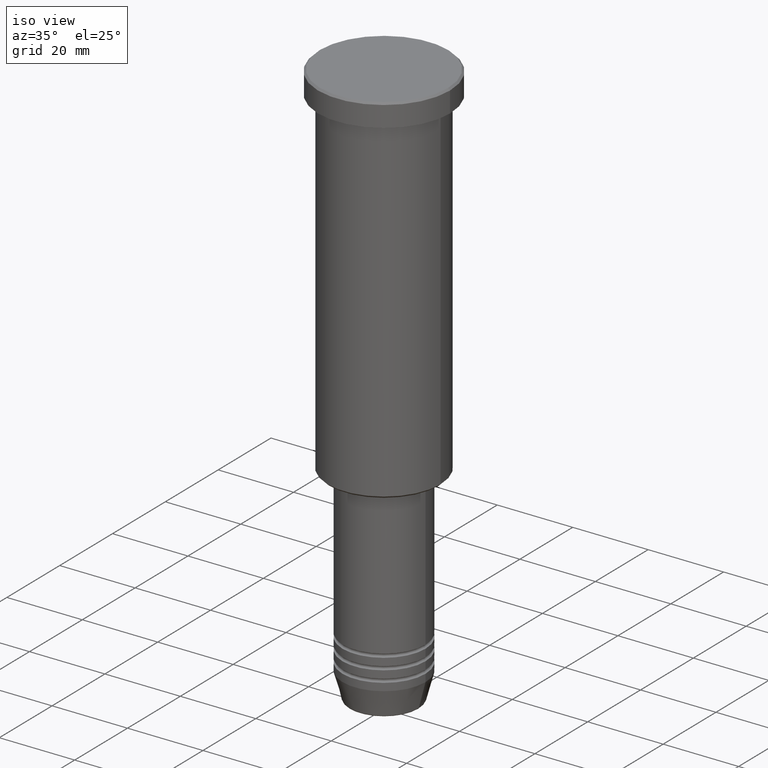
[diagram: clean part render]
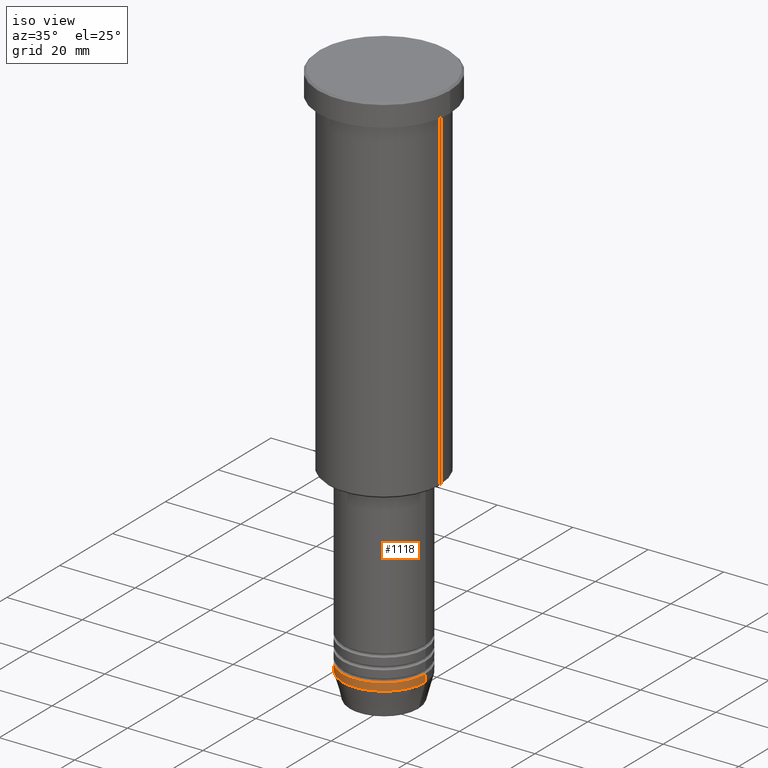
[diagram: same view with one face highlighted and labeled with its STEP entity id]
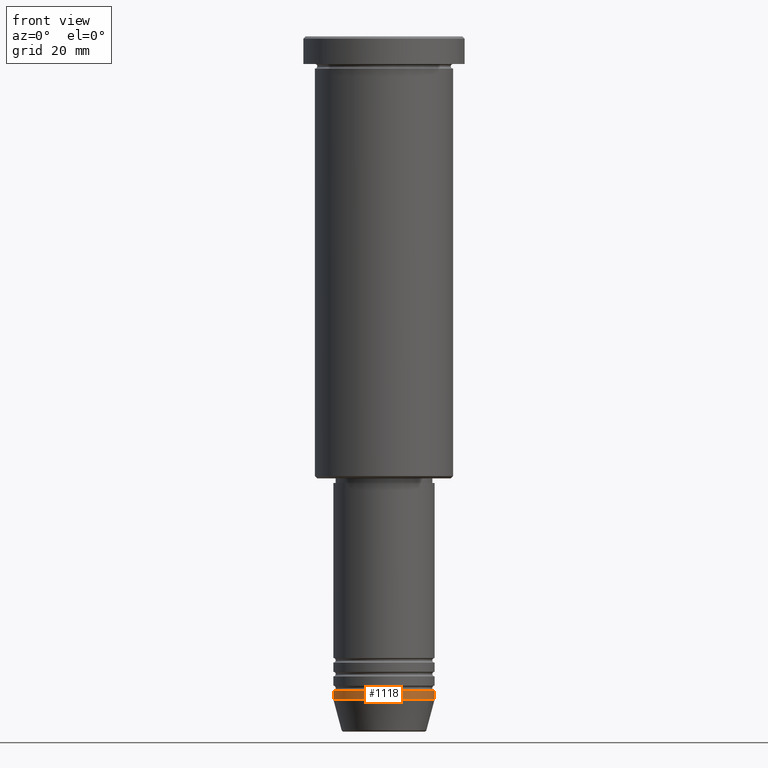
[diagram: same view with one face highlighted and labeled with its STEP entity id]
A machine part, iso view. The second image highlights one B-rep face of the part: STEP entity #1118.
A second angle (front view) of the same face is appended — the face is thin or edge-on in the first view.
In plain terms, the highlighted cylindrical surface (partial cylindrical patch) has radius 11 mm, axis along (-0, -0, 1).
Its self-contained STEP definition (entity closure, byte-faithful):
#1 = CARTESIAN_POINT ( 'NONE',  ( 0.000000000000000000, 0.000000000000000000, -144.0000000000000284 ) ) ;
#14 = AXIS2_PLACEMENT_3D ( 'NONE', #1, #746, #457 ) ;
#57 = EDGE_CURVE ( 'NONE', #710, #937, #60, .T. ) ;
#60 = LINE ( 'NONE', #423, #575 ) ;
#64 = LINE ( 'NONE', #979, #866 ) ;
#112 = AXIS2_PLACEMENT_3D ( 'NONE', #281, #378, #201 ) ;
#132 = CIRCLE ( 'NONE', #955, 11.00000000000000000 ) ;
#148 = EDGE_CURVE ( 'NONE', #710, #967, #365, .T. ) ;
#197 = CYLINDRICAL_SURFACE ( 'NONE', #112, 11.00000000000000000 ) ;
#201 = DIRECTION ( 'NONE',  ( 1.000000000000000000, 0.000000000000000000, 0.000000000000000000 ) ) ;
#215 = EDGE_LOOP ( 'NONE', ( #665, #939, #623, #1090 ) ) ;
#281 = CARTESIAN_POINT ( 'NONE',  ( 0.000000000000000000, 0.000000000000000000, 0.000000000000000000 ) ) ;
#365 = CIRCLE ( 'NONE', #14, 11.00000000000000000 ) ;
#366 = DIRECTION ( 'NONE',  ( 1.000000000000000000, 0.000000000000000000, 0.000000000000000000 ) ) ;
#378 = DIRECTION ( 'NONE',  ( -0.000000000000000000, -0.000000000000000000, 1.000000000000000000 ) ) ;
#423 = CARTESIAN_POINT ( 'NONE',  ( -11.00000000000000000, 1.347111479062088405E-15, 0.000000000000000000 ) ) ;
#433 = EDGE_CURVE ( 'NONE', #967, #760, #64, .T. ) ;
#434 = DIRECTION ( 'NONE',  ( -0.000000000000000000, -0.000000000000000000, 1.000000000000000000 ) ) ;
#457 = DIRECTION ( 'NONE',  ( 1.000000000000000000, 0.000000000000000000, 0.000000000000000000 ) ) ;
#575 = VECTOR ( 'NONE', #434, 1000.000000000000000 ) ;
#576 = EDGE_CURVE ( 'NONE', #937, #760, #132, .T. ) ;
#623 = ORIENTED_EDGE ( 'NONE', *, *, #433, .T. ) ;
#657 = CARTESIAN_POINT ( 'NONE',  ( 11.00000000000000000, 0.000000000000000000, -142.0000000000000284 ) ) ;
#665 = ORIENTED_EDGE ( 'NONE', *, *, #57, .F. ) ;
#710 = VERTEX_POINT ( 'NONE', #934 ) ;
#731 = CARTESIAN_POINT ( 'NONE',  ( -11.00000000000000000, 1.347111479062088405E-15, -142.0000000000000284 ) ) ;
#732 = CARTESIAN_POINT ( 'NONE',  ( 0.000000000000000000, 0.000000000000000000, -142.0000000000000284 ) ) ;
#746 = DIRECTION ( 'NONE',  ( -0.000000000000000000, -0.000000000000000000, 1.000000000000000000 ) ) ;
#760 = VERTEX_POINT ( 'NONE', #657 ) ;
#801 = DIRECTION ( 'NONE',  ( -0.000000000000000000, -0.000000000000000000, 1.000000000000000000 ) ) ;
#840 = FACE_OUTER_BOUND ( 'NONE', #215, .T. ) ;
#866 = VECTOR ( 'NONE', #801, 1000.000000000000000 ) ;
#934 = CARTESIAN_POINT ( 'NONE',  ( -11.00000000000000000, 1.347111479062088405E-15, -144.0000000000000284 ) ) ;
#937 = VERTEX_POINT ( 'NONE', #731 ) ;
#939 = ORIENTED_EDGE ( 'NONE', *, *, #148, .T. ) ;
#955 = AXIS2_PLACEMENT_3D ( 'NONE', #732, #993, #366 ) ;
#967 = VERTEX_POINT ( 'NONE', #1078 ) ;
#979 = CARTESIAN_POINT ( 'NONE',  ( 11.00000000000000000, 0.000000000000000000, 0.000000000000000000 ) ) ;
#993 = DIRECTION ( 'NONE',  ( -0.000000000000000000, -0.000000000000000000, 1.000000000000000000 ) ) ;
#1078 = CARTESIAN_POINT ( 'NONE',  ( 11.00000000000000000, 0.000000000000000000, -144.0000000000000284 ) ) ;
#1090 = ORIENTED_EDGE ( 'NONE', *, *, #576, .F. ) ;
#1118 = ADVANCED_FACE ( 'NONE', ( #840 ), #197, .T. ) ;